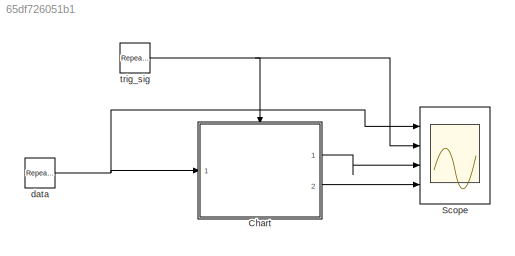
MODEL slx_65df726051b1
KIND model
CONFIG AbsTol = auto
CONFIG EnableMultiTasking = off
CONFIG FixedStep = 0.5
CONFIG MaxStep = auto
CONFIG MinStep = auto
CONFIG RelTol = 1e-3
CONFIG SampleTimeConstraint = Unconstrained
CONFIG Solver = FixedStepDiscrete
CONFIG SolverName = FixedStepDiscrete
CONFIG StartTime = 0.0
CONFIG StopTime = 10.0
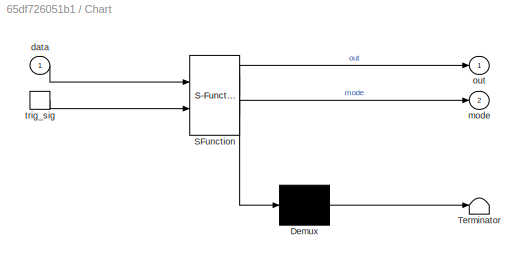
BLOCK [SubSystem] Chart
  ErrorFcn = Stateflow.Translate.translate
  PermitHierarchicalResolution = ExplicitOnly
  Ports = [1, 2, 0, 1]
  RequestExecContextInheritance = off
  SFBlockType = Chart
  TreatAsAtomicUnit = on
BLOCK [Demux] Chart/ Demux 
  Outputs = 1
  Ports = [1, 1]
BLOCK [S-Function] Chart/ SFunction 
  EnableBusSupport = on
  FunctionName = sf_sfun
  PortCounts = [2 3]
  Ports = [2, 3]
  SFcnIsStateOwnerBlock = off
  SFunctionDeploymentMode = off
  Tag = Stateflow S-Function Parallel_States 3
BLOCK [Terminator] Chart/ Terminator 
BLOCK [Inport] Chart/data
  IconDisplay = Port number
BLOCK [Outport] Chart/mode
  IconDisplay = Port number
  Port = 2
BLOCK [Outport] Chart/out
  IconDisplay = Port number
BLOCK [TriggerPort] Chart/trig_sig
  Ports = [0, 1]
  ShowOutputPort = on
  StatesWhenEnabling = held
  VariantControl = (inherit)
BLOCK [Scope] Scope
  Floating = off
  NumInputPorts = 4
  Ports = [4]
  ScopeSpecificationString = Simulink.scopes.TimeScopeBlockCfg('CurrentConfiguration', extmgr.ConfigurationSet(extmgr.Configuration('Core','General UI',true),extmgr.Configuration('Core','Source UI',true),extmgr.Configuration('Sources','WiredSimulink',true),extmgr.Configuration('Visuals','Time Domain',true,'SerializedDisplays',{struct('MinYLimReal','-0.625','MaxYLimReal','5.625','YLabelReal','','MinYLimMag','0.00000','MaxYLimM...<+3442ch>
BLOCK [Reference] data  REF=simulink/Sources/Repeating
Sequence
Stair
  Ports = [0, 1]
  SourceBlock = simulink/Sources/Repeating\nSequence\nStair
  SourceProductBaseCode = SL
  SourceProductName = Simulink
  SourceType = Repeating Sequence Stair
BLOCK [Reference] trig_sig  REF=simulink/Sources/Repeating
Sequence
Stair
  Ports = [0, 1]
  SourceBlock = simulink/Sources/Repeating\nSequence\nStair
  SourceProductBaseCode = SL
  SourceProductName = Simulink
  SourceType = Repeating Sequence Stair
LINE Chart:1 -> Scope:3
LINE Chart:2 -> Scope:4
NET data:1 -> Chart:1, Scope:1
NET trig_sig:1 -> Chart:trigger, Scope:2
note: NET lines group one-source signal fan-out (src -> all destinations, sorted); 1:1 wires keep LINE
CHART Chart states=9 transitions=7
  STATE_LABEL 'To make it parallel, right click here and choose Decomposition -> AND'
  STATE_LABEL 'State_det'
  STATE_LABEL 'decide the mode'
  STATE_LABEL 'on_ct\nen: i=1;\nen: mode=1;\ndu: i=i+1;'
  STATE_LABEL 'off_ct\nen: i=1;\nen: mode=0;\ndu: i=i+1;'
  STATE_LABEL '[i>=8]'
  STATE_LABEL '[i>=2]'
  STATE_LABEL 'decide the mode'
  STATE_LABEL 'on_ct\nen: i=1;\nen: mode=1;\ndu: i=i+1;'
  STATE_LABEL 'off_ct\nen: i=1;\nen: mode=0;\ndu: i=i+1;'
  STATE_LABEL 'action'
  STATE_LABEL 'on\nen: out=data;\ndu: out=data;'
  STATE_LABEL 'off\nen: out=0;\ndu: out=0;'
  STATE_LABEL '[mode==0]'
  STATE_LABEL '[mode==1]'
  STATE_LABEL 'on\nen: out=data;\ndu: out=data;'
  STATE_LABEL 'off\nen: out=0;\ndu: out=0;'
  STATE_LABEL 'take action'
